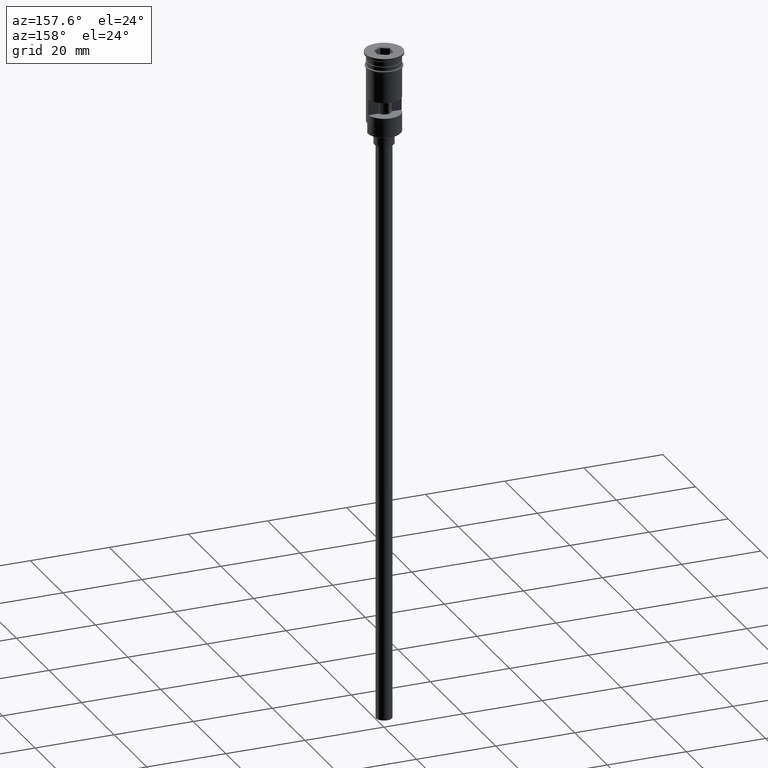
[diagram: clean part render]
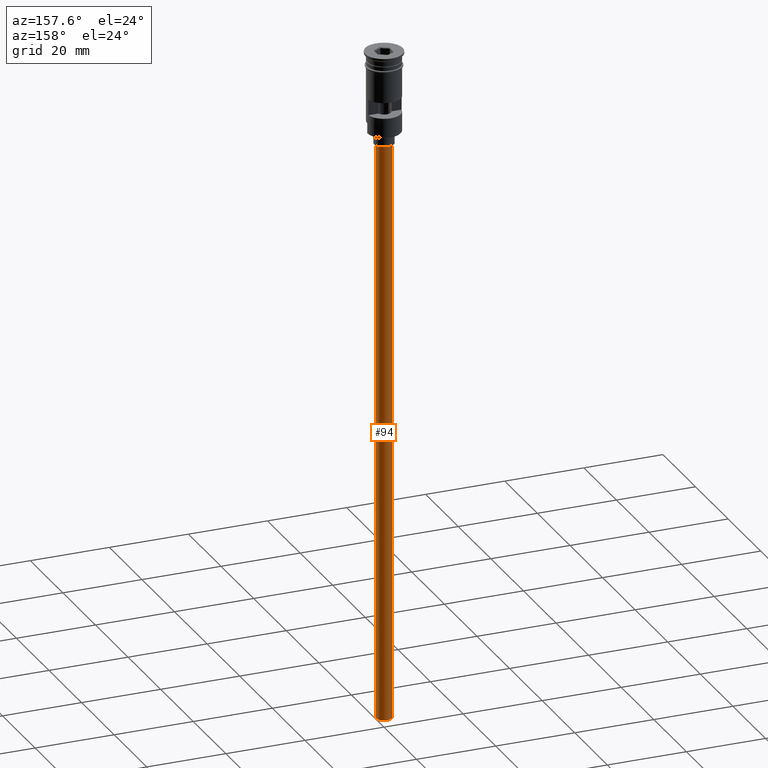
[diagram: same view with one face highlighted and labeled with its STEP entity id]
A machine part, auxiliary view. The second image highlights one B-rep face of the part: STEP entity #94.
In plain terms, the highlighted cylindrical surface (edge-blend (fillet) strip) has radius 2 mm, axis along (-0, -0, 1).
Its self-contained STEP definition (entity closure, byte-faithful):
#59 = VERTEX_POINT ( 'NONE', #550 ) ;
#69 = CYLINDRICAL_SURFACE ( 'NONE', #248, 2.000000000000000000 ) ;
#94 = ADVANCED_FACE ( 'NONE', ( #192 ), #69, .T. ) ;
#152 = EDGE_CURVE ( 'NONE', #1184, #1277, #665, .T. ) ;
#192 = FACE_OUTER_BOUND ( 'NONE', #631, .T. ) ;
#222 = EDGE_CURVE ( 'NONE', #59, #1499, #1000, .T. ) ;
#247 = VECTOR ( 'NONE', #1209, 1000.000000000000000 ) ;
#248 = AXIS2_PLACEMENT_3D ( 'NONE', #1551, #1436, #419 ) ;
#335 = LINE ( 'NONE', #1224, #247 ) ;
#419 = DIRECTION ( 'NONE',  ( 1.000000000000000000, 0.000000000000000000, 0.000000000000000000 ) ) ;
#454 = ORIENTED_EDGE ( 'NONE', *, *, #891, .F. ) ;
#530 = ORIENTED_EDGE ( 'NONE', *, *, #152, .F. ) ;
#550 = CARTESIAN_POINT ( 'NONE',  ( -2.000000000000000000, 2.449293598294706414E-16, -23.49999999999999645 ) ) ;
#598 = CARTESIAN_POINT ( 'NONE',  ( 0.000000000000000000, 0.000000000000000000, -23.49999999999999645 ) ) ;
#631 = EDGE_LOOP ( 'NONE', ( #530, #1493, #1590, #454 ) ) ;
#665 = CIRCLE ( 'NONE', #1507, 2.000000000000000000 ) ;
#687 = LINE ( 'NONE', #1560, #796 ) ;
#708 = CARTESIAN_POINT ( 'NONE',  ( 2.000000000000000000, 0.000000000000000000, -170.4999999999999716 ) ) ;
#728 = DIRECTION ( 'NONE',  ( 0.000000000000000000, 0.000000000000000000, -1.000000000000000000 ) ) ;
#796 = VECTOR ( 'NONE', #1046, 1000.000000000000000 ) ;
#873 = AXIS2_PLACEMENT_3D ( 'NONE', #598, #728, #1240 ) ;
#891 = EDGE_CURVE ( 'NONE', #1277, #1499, #687, .T. ) ;
#961 = CARTESIAN_POINT ( 'NONE',  ( 0.000000000000000000, 0.000000000000000000, -170.4999999999999716 ) ) ;
#1000 = CIRCLE ( 'NONE', #873, 2.000000000000000000 ) ;
#1046 = DIRECTION ( 'NONE',  ( -0.000000000000000000, -0.000000000000000000, 1.000000000000000000 ) ) ;
#1048 = EDGE_CURVE ( 'NONE', #1184, #59, #335, .T. ) ;
#1175 = CARTESIAN_POINT ( 'NONE',  ( -2.000000000000000000, 2.449293598294706414E-16, -170.4999999999999716 ) ) ;
#1184 = VERTEX_POINT ( 'NONE', #1175 ) ;
#1209 = DIRECTION ( 'NONE',  ( -0.000000000000000000, -0.000000000000000000, 1.000000000000000000 ) ) ;
#1224 = CARTESIAN_POINT ( 'NONE',  ( -2.000000000000000000, 2.449293598294706414E-16, -170.4999999999999716 ) ) ;
#1240 = DIRECTION ( 'NONE',  ( -1.000000000000000000, 0.000000000000000000, 0.000000000000000000 ) ) ;
#1277 = VERTEX_POINT ( 'NONE', #708 ) ;
#1436 = DIRECTION ( 'NONE',  ( -0.000000000000000000, -0.000000000000000000, 1.000000000000000000 ) ) ;
#1467 = DIRECTION ( 'NONE',  ( 0.000000000000000000, 0.000000000000000000, -1.000000000000000000 ) ) ;
#1468 = CARTESIAN_POINT ( 'NONE',  ( 2.000000000000000000, 0.000000000000000000, -23.49999999999999645 ) ) ;
#1493 = ORIENTED_EDGE ( 'NONE', *, *, #1048, .T. ) ;
#1499 = VERTEX_POINT ( 'NONE', #1468 ) ;
#1507 = AXIS2_PLACEMENT_3D ( 'NONE', #961, #1467, #1593 ) ;
#1551 = CARTESIAN_POINT ( 'NONE',  ( 0.000000000000000000, 0.000000000000000000, -170.4999999999999716 ) ) ;
#1560 = CARTESIAN_POINT ( 'NONE',  ( 2.000000000000000000, 0.000000000000000000, -170.4999999999999716 ) ) ;
#1590 = ORIENTED_EDGE ( 'NONE', *, *, #222, .T. ) ;
#1593 = DIRECTION ( 'NONE',  ( -1.000000000000000000, 0.000000000000000000, 0.000000000000000000 ) ) ;